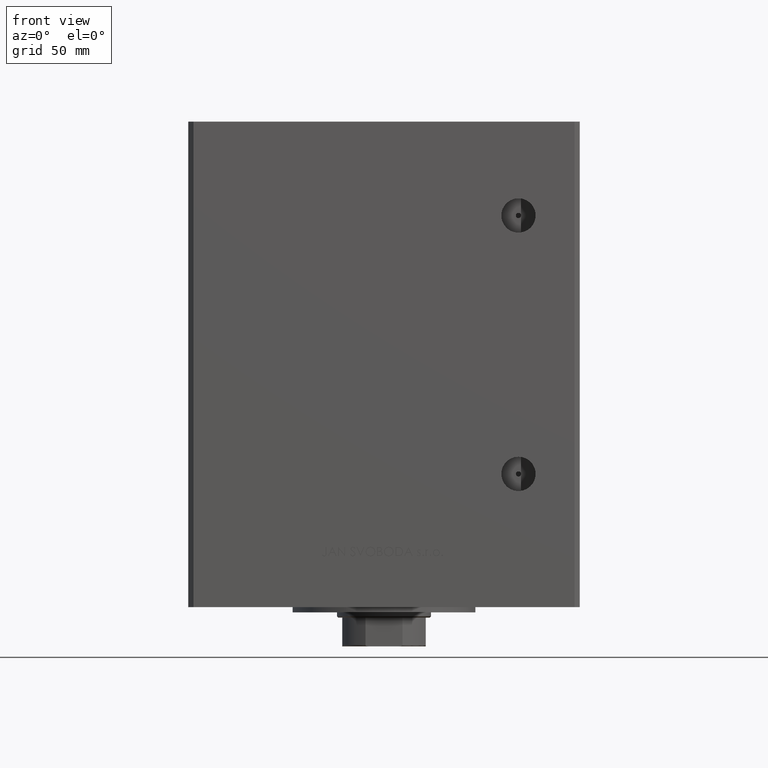
[diagram: clean part render]
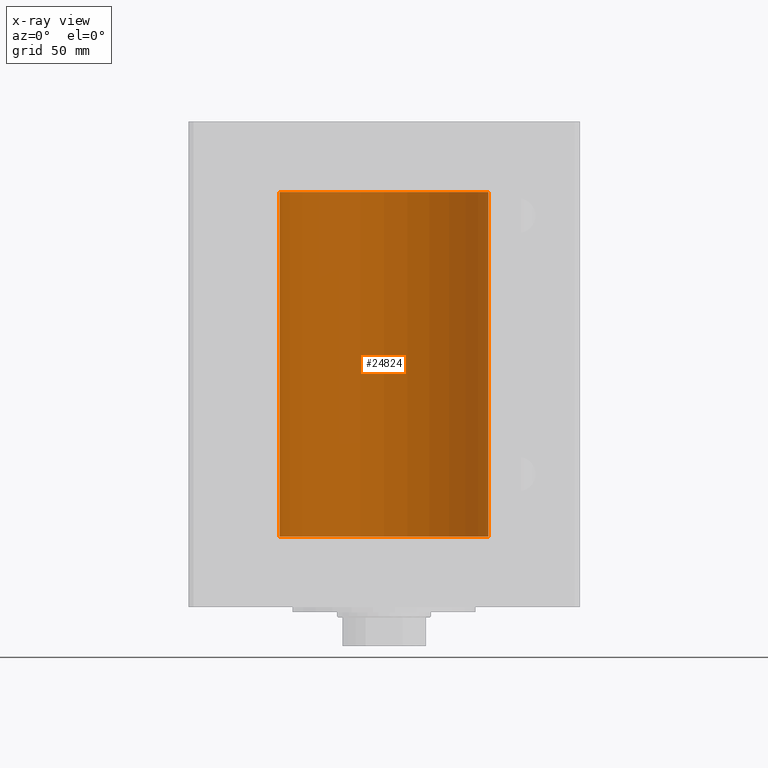
[diagram: x-ray — body ghosted, one internal face saturated and labeled with its STEP entity id]
A machine part, front view, then the same camera in x-ray: the body is ghosted and one INTERNAL B-rep face — a face not visible from any outside direction — is saturated and labeled: STEP entity #24824.
In plain terms, the highlighted cylindrical surface (partial cylindrical patch) has radius 40 mm, axis along (-0, -0, -1).
Its self-contained STEP definition (entity closure, byte-faithful):
#151 = DIRECTION ( 'NONE',  ( -0.000000000000000000, 0.000000000000000000, 1.000000000000000000 ) ) ;
#4136 = VERTEX_POINT ( 'NONE', #10615 ) ;
#6532 = DIRECTION ( 'NONE',  ( -0.000000000000000000, -0.000000000000000000, -1.000000000000000000 ) ) ;
#8038 = DIRECTION ( 'NONE',  ( 1.000000000000000000, 0.000000000000000000, 0.000000000000000000 ) ) ;
#8271 = EDGE_CURVE ( 'NONE', #4136, #40040, #33814, .T. ) ;
#9282 = AXIS2_PLACEMENT_3D ( 'NONE', #34990, #151, #8038 ) ;
#10021 = ORIENTED_EDGE ( 'NONE', *, *, #8271, .F. ) ;
#10615 = CARTESIAN_POINT ( 'NONE',  ( 40.00000000000000000, 4.898587196589413026E-15, 132.0000000000000000 ) ) ;
#10995 = EDGE_CURVE ( 'NONE', #4136, #29886, #40775, .T. ) ;
#11107 = LINE ( 'NONE', #34237, #28656 ) ;
#12796 = CARTESIAN_POINT ( 'NONE',  ( 0.000000000000000000, 0.000000000000000000, 132.0000000000000000 ) ) ;
#14496 = CARTESIAN_POINT ( 'NONE',  ( 40.00000000000000000, 4.898587196589413026E-15, 132.0000000000000000 ) ) ;
#14503 = CARTESIAN_POINT ( 'NONE',  ( -40.00000000000000000, 0.000000000000000000, 132.0000000000000000 ) ) ;
#20412 = VECTOR ( 'NONE', #25164, 1000.000000000000000 ) ;
#22302 = CARTESIAN_POINT ( 'NONE',  ( 0.000000000000000000, 0.000000000000000000, 132.0000000000000000 ) ) ;
#22465 = EDGE_LOOP ( 'NONE', ( #10021, #29009, #41256, #22779 ) ) ;
#22779 = ORIENTED_EDGE ( 'NONE', *, *, #39038, .F. ) ;
#24824 = ADVANCED_FACE ( 'NONE', ( #28546 ), #39989, .F. ) ;
#25164 = DIRECTION ( 'NONE',  ( -0.000000000000000000, -0.000000000000000000, -1.000000000000000000 ) ) ;
#26820 = AXIS2_PLACEMENT_3D ( 'NONE', #12796, #39731, #47868 ) ;
#27131 = CIRCLE ( 'NONE', #9282, 40.00000000000000000 ) ;
#28546 = FACE_OUTER_BOUND ( 'NONE', #22465, .T. ) ;
#28656 = VECTOR ( 'NONE', #6532, 1000.000000000000000 ) ;
#29009 = ORIENTED_EDGE ( 'NONE', *, *, #10995, .T. ) ;
#29886 = VERTEX_POINT ( 'NONE', #14503 ) ;
#33814 = LINE ( 'NONE', #14496, #20412 ) ;
#34237 = CARTESIAN_POINT ( 'NONE',  ( -40.00000000000000000, 0.000000000000000000, 132.0000000000000000 ) ) ;
#34927 = EDGE_CURVE ( 'NONE', #29886, #43215, #11107, .T. ) ;
#34990 = CARTESIAN_POINT ( 'NONE',  ( 0.000000000000000000, 0.000000000000000000, 0.000000000000000000 ) ) ;
#37816 = DIRECTION ( 'NONE',  ( -0.000000000000000000, 0.000000000000000000, 1.000000000000000000 ) ) ;
#39038 = EDGE_CURVE ( 'NONE', #40040, #43215, #27131, .T. ) ;
#39731 = DIRECTION ( 'NONE',  ( -0.000000000000000000, -0.000000000000000000, -1.000000000000000000 ) ) ;
#39989 = CYLINDRICAL_SURFACE ( 'NONE', #26820, 40.00000000000000000 ) ;
#40040 = VERTEX_POINT ( 'NONE', #42428 ) ;
#40775 = CIRCLE ( 'NONE', #42421, 40.00000000000000000 ) ;
#41256 = ORIENTED_EDGE ( 'NONE', *, *, #34927, .T. ) ;
#42421 = AXIS2_PLACEMENT_3D ( 'NONE', #22302, #37816, #49482 ) ;
#42428 = CARTESIAN_POINT ( 'NONE',  ( 40.00000000000000000, 4.898587196589413026E-15, 0.000000000000000000 ) ) ;
#43215 = VERTEX_POINT ( 'NONE', #45382 ) ;
#45382 = CARTESIAN_POINT ( 'NONE',  ( -40.00000000000000000, 0.000000000000000000, 0.000000000000000000 ) ) ;
#47868 = DIRECTION ( 'NONE',  ( -1.000000000000000000, 0.000000000000000000, 0.000000000000000000 ) ) ;
#49482 = DIRECTION ( 'NONE',  ( 1.000000000000000000, 0.000000000000000000, 0.000000000000000000 ) ) ;